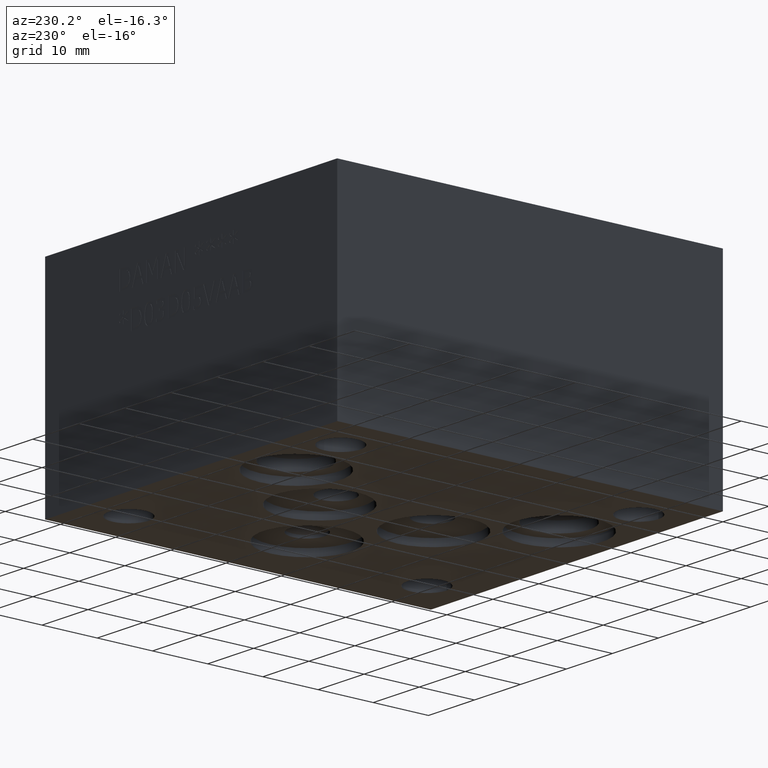
[diagram: clean part render]
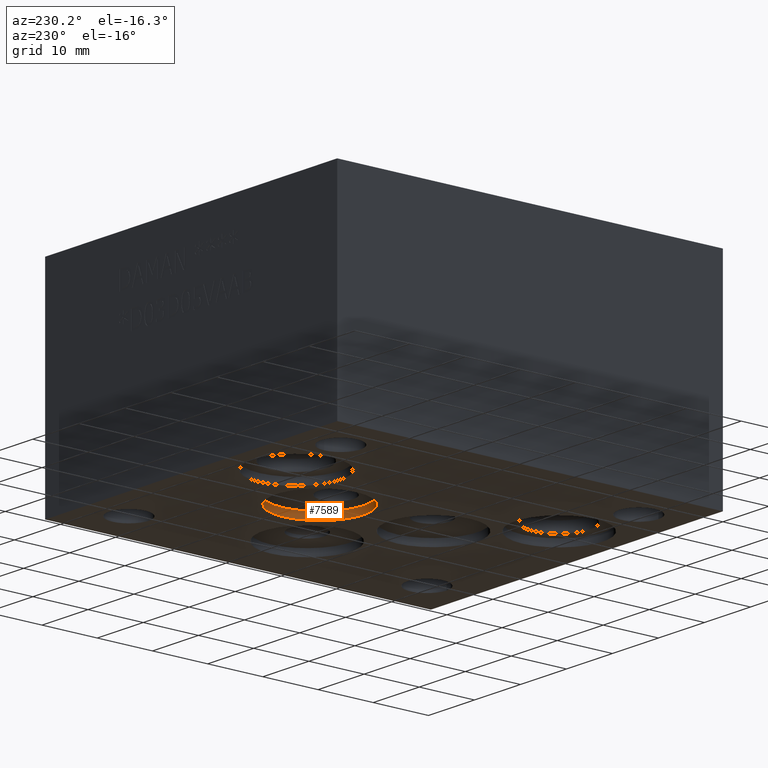
[diagram: same view with one face highlighted and labeled with its STEP entity id]
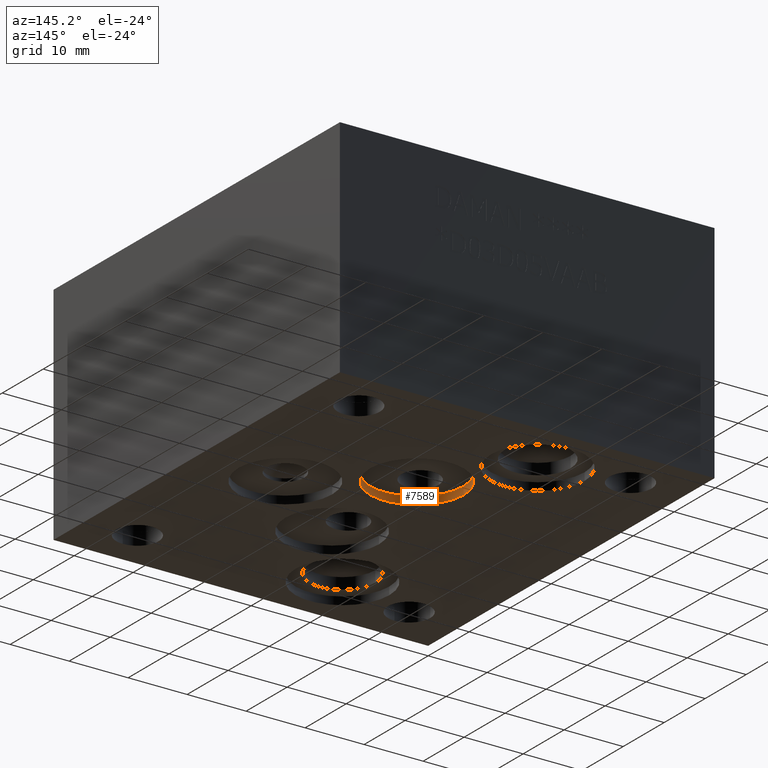
[diagram: same view with one face highlighted and labeled with its STEP entity id]
A machine part, auxiliary view. The second image highlights one B-rep face of the part: STEP entity #7589.
A second angle (auxiliary view) of the same face is appended — the face is thin or edge-on in the first view.
In plain terms, the highlighted cylindrical surface (bore or boss wall) has radius 7.9375 mm, axis along (0, 0, -1).
Its self-contained STEP definition (entity closure, byte-faithful):
#20=CYLINDRICAL_SURFACE('',#7921,7.9375);
#60=CIRCLE('',#7922,7.9375);
#61=CIRCLE('',#7923,7.9375);
#824=FACE_OUTER_BOUND('',#1253,.T.);
#1253=EDGE_LOOP('',(#6446,#6447,#6448,#6449));
#2064=LINE('',#12658,#2835);
#2835=VECTOR('',#9283,7.9375);
#3501=VERTEX_POINT('',#12655);
#3502=VERTEX_POINT('',#12657);
#4499=EDGE_CURVE('',#3501,#3501,#60,.T.);
#4500=EDGE_CURVE('',#3501,#3502,#2064,.T.);
#4501=EDGE_CURVE('',#3502,#3502,#61,.T.);
#6446=ORIENTED_EDGE('',*,*,#4499,.F.);
#6447=ORIENTED_EDGE('',*,*,#4500,.T.);
#6448=ORIENTED_EDGE('',*,*,#4501,.F.);
#6449=ORIENTED_EDGE('',*,*,#4500,.F.);
#7589=ADVANCED_FACE('',(#824),#20,.F.);
#7921=AXIS2_PLACEMENT_3D('',#12654,#9279,#9280);
#7922=AXIS2_PLACEMENT_3D('',#12656,#9281,#9282);
#7923=AXIS2_PLACEMENT_3D('',#12659,#9284,#9285);
#9279=DIRECTION('center_axis',(0.,0.,-1.));
#9280=DIRECTION('ref_axis',(1.,0.,0.));
#9281=DIRECTION('center_axis',(0.,0.,1.));
#9282=DIRECTION('ref_axis',(1.,0.,0.));
#9283=DIRECTION('',(0.,0.,1.));
#9284=DIRECTION('center_axis',(0.,0.,-1.));
#9285=DIRECTION('ref_axis',(1.,0.,0.));
#12654=CARTESIAN_POINT('Origin',(33.3502,45.2374,0.6604));
#12655=CARTESIAN_POINT('',(25.4127,45.2374,0.));
#12656=CARTESIAN_POINT('Origin',(33.3502,45.2374,0.));
#12657=CARTESIAN_POINT('',(25.4127,45.2374,1.3208));
#12658=CARTESIAN_POINT('',(25.4127,45.2374,0.6604));
#12659=CARTESIAN_POINT('Origin',(33.3502,45.2374,1.3208));